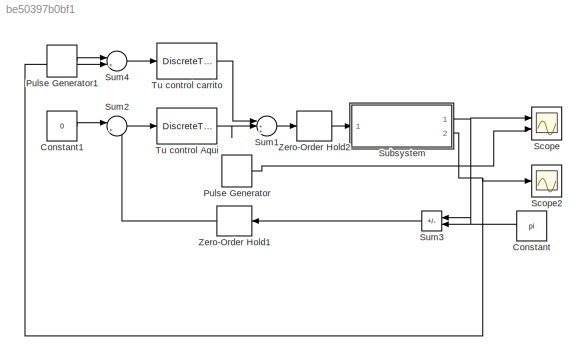
MODEL slx_be50397b0bf1
KIND model
CONFIG AbsTol = auto
CONFIG EnableMultiTasking = off
CONFIG FixedStep = auto
CONFIG MaxStep = auto
CONFIG MinStep = auto
CONFIG RelTol = 1e-3
CONFIG SampleTimeConstraint = Unconstrained
CONFIG SolverName = VariableStepAuto
CONFIG StartTime = 0.0
CONFIG StopTime = 40
BLOCK [Constant] Constant
  NameLocation = top
  Value = pi
BLOCK [Constant] Constant1
  Value = 0
BLOCK [DiscretePulseGenerator] Pulse Generator
  Amplitude = 100
  Ports = [0, 1]
  PulseType = Time based
  PulseWidth = 0.1
BLOCK [DiscretePulseGenerator] Pulse Generator1
  Period = 20
  Ports = [0, 1]
  PulseType = Time based
  PulseWidth = 50
BLOCK [Scope] Scope
  Floating = off
  NumInputPorts = 2
  Ports = [2]
  ScopeSpecificationString = Simulink.scopes.TimeScopeBlockCfg('CurrentConfiguration', extmgr.ConfigurationSet(extmgr.Configuration('Core','General UI',true),extmgr.Configuration('Core','Source UI',true),extmgr.Configuration('Sources','WiredSimulink',true),extmgr.Configuration('Visuals','Time Domain',true,'SerializedDisplays',{struct('MinYLimReal','3.11823','MaxYLimReal','3.18171','YLabelReal','','MinYLimMag','3.11823','MaxYL...<+1420ch>
BLOCK [Scope] Scope2
  Floating = off
  NumInputPorts = 1
  Ports = [1]
  ScopeSpecificationString = Simulink.scopes.TimeScopeBlockCfg('CurrentConfiguration', extmgr.ConfigurationSet(extmgr.Configuration('Core','General UI',true),extmgr.Configuration('Core','Source UI',true),extmgr.Configuration('Sources','WiredSimulink',true,'DataLoggingVariableName','ScopeData2'),extmgr.Configuration('Visuals','Time Domain',true,'SerializedDisplays',{struct('MinYLimReal','-0.80114','MaxYLimReal','1.78572','YLab...<+1370ch>
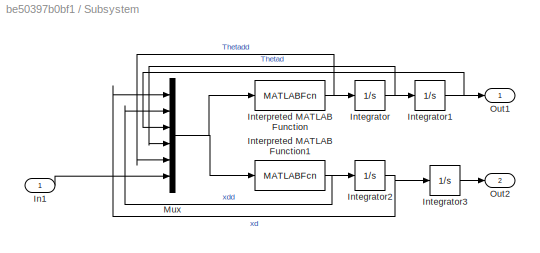
BLOCK [SubSystem] Subsystem
  Ports = [1, 2]
  RequestExecContextInheritance = off
BLOCK [Inport] Subsystem/In1
BLOCK [Integrator] Subsystem/Integrator
  Ports = [1, 1]
BLOCK [Integrator] Subsystem/Integrator1
  InitialCondition = pi
  Ports = [1, 1]
BLOCK [Integrator] Subsystem/Integrator2
  Ports = [1, 1]
BLOCK [Integrator] Subsystem/Integrator3
  Ports = [1, 1]
BLOCK [MATLABFcn] Subsystem/Interpreted MATLAB Function
  MATLABFcn = (-m*L*u(2)*cos(u(3))-m*g*L*sin(u(3)))/(I+m*L^2)
  Ports = [1, 1]
BLOCK [MATLABFcn] Subsystem/Interpreted MATLAB Function1
  MATLABFcn = (u(6)+m*L*u(4)^2*sin(u(3))-m*L*u(5)*cos(u(3))-b*u(1))/(m+M)
  Ports = [1, 1]
BLOCK [Mux] Subsystem/Mux
  DisplayOption = bar
  Inputs = 6
  Ports = [6, 1]
BLOCK [Outport] Subsystem/Out1
BLOCK [Outport] Subsystem/Out2
  Port = 2
BLOCK [Sum] Sum1
  Inputs = |+++
  Ports = [3, 1]
BLOCK [Sum] Sum2
  Inputs = |+-
  Ports = [2, 1]
BLOCK [Sum] Sum3
  IconShape = rectangular
  Inputs = |+-
  NameLocation = top
  Ports = [2, 1]
BLOCK [Sum] Sum4
  Inputs = |+-
  Ports = [2, 1]
BLOCK [DiscreteTransferFcn] Tu control Aqui
  Denominator = denC
  InputPortMap = u0
  Numerator = numC
  Ports = [1, 1]
  SampleTime = T
BLOCK [DiscreteTransferFcn] Tu control carrito
  Denominator = denCcarrito
  InputPortMap = u0
  Numerator = numCcarrito
  Ports = [1, 1]
  SampleTime = T
BLOCK [ZeroOrderHold] Zero-Order Hold1
  NameLocation = top
  SampleTime = T
BLOCK [ZeroOrderHold] Zero-Order Hold2
  SampleTime = T
LINE Constant1:1 -> Sum2:1
LINE Constant:1 -> Sum3:2
LINE Pulse Generator1:1 -> Sum4:1
LINE Pulse Generator:1 -> Scope:2
LINE Subsystem/In1:1 -> Subsystem/Mux:6
NET Subsystem/Integrator1:1 -> Subsystem/Mux:3, Subsystem/Out1:1
NET Subsystem/Integrator2:1 -> Subsystem/Integrator3:1, Subsystem/Mux:1
LINE Subsystem/Integrator3:1 -> Subsystem/Out2:1
NET Subsystem/Integrator:1 -> Subsystem/Integrator1:1, Subsystem/Mux:4
NET Subsystem/Interpreted MATLAB Function1:1 -> Subsystem/Integrator2:1, Subsystem/Mux:2
NET Subsystem/Interpreted MATLAB Function:1 -> Subsystem/Integrator:1, Subsystem/Mux:5
NET Subsystem/Mux:1 -> Subsystem/Interpreted MATLAB Function1:1, Subsystem/Interpreted MATLAB Function:1
NET Subsystem:1 -> Scope:1, Sum3:1
NET Subsystem:2 -> Scope2:1, Sum4:2
LINE Sum1:1 -> Zero-Order Hold2:1
LINE Sum2:1 -> Tu control Aqui:1
LINE Sum3:1 -> Zero-Order Hold1:1
LINE Sum4:1 -> Tu control carrito:1
LINE Tu control Aqui:1 -> Sum1:2
LINE Tu control carrito:1 -> Sum1:1
LINE Zero-Order Hold1:1 -> Sum2:2
LINE Zero-Order Hold2:1 -> Subsystem:1
note: NET lines group one-source signal fan-out (src -> all destinations, sorted); 1:1 wires keep LINE
